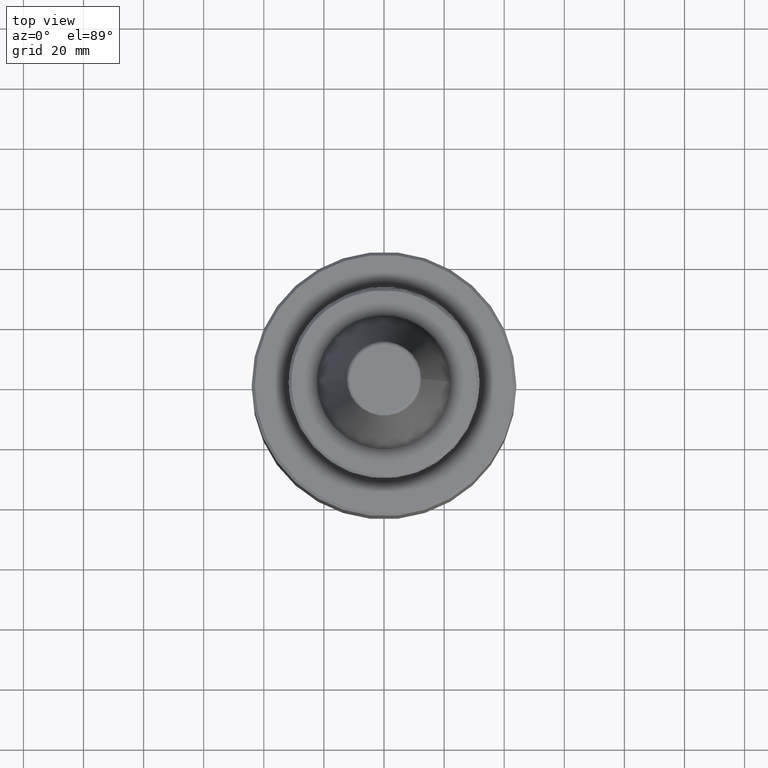
[diagram: clean part render]
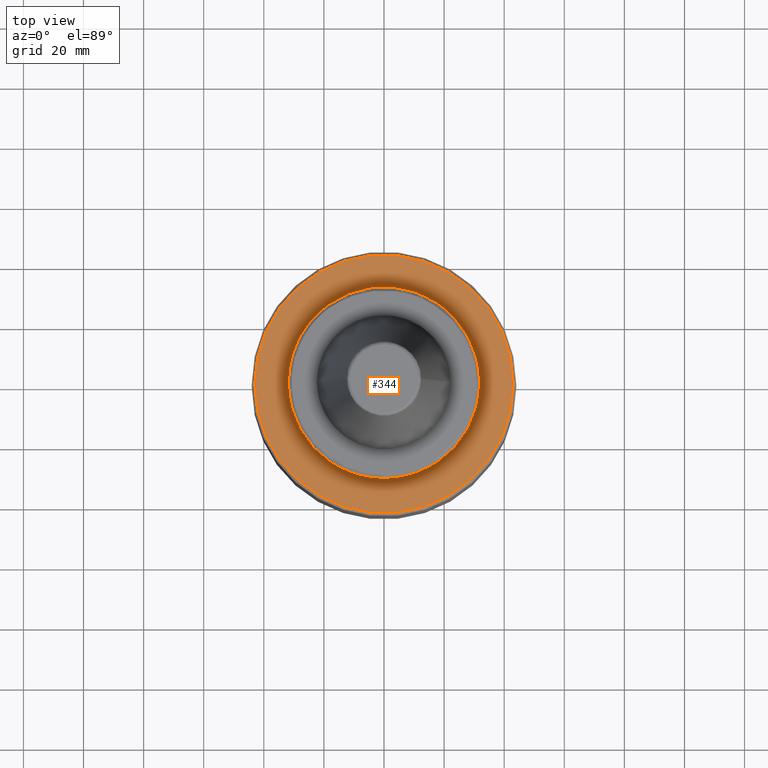
[diagram: same view with one face highlighted and labeled with its STEP entity id]
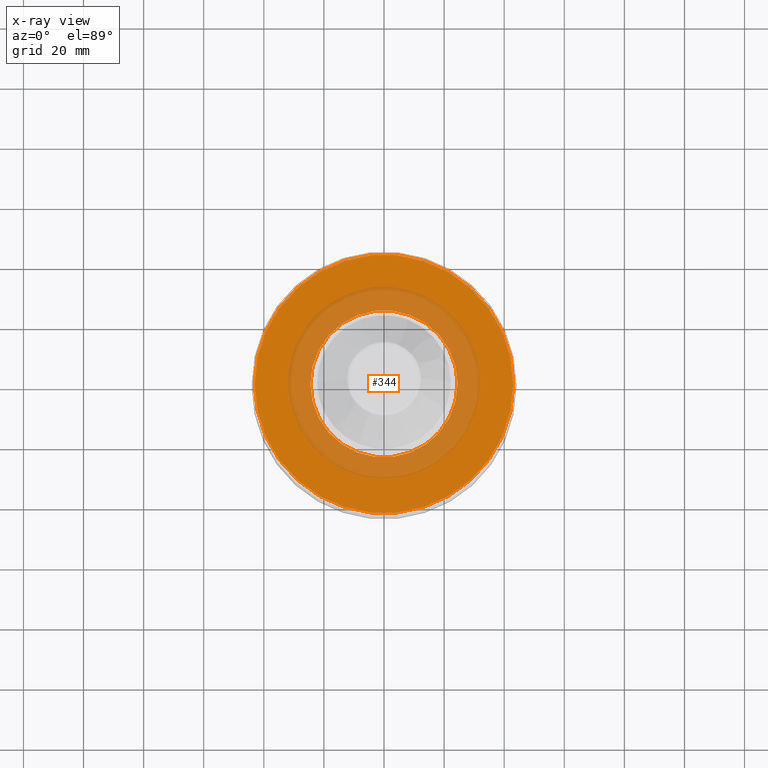
[diagram: x-ray of the same camera — body ghosted, the highlighted face saturated]
A machine part, top view. The second image highlights one B-rep face of the part: STEP entity #344.
The next image is the same camera in x-ray: the body ghosted, the highlighted face saturated — about 33% of this face is hidden behind the body in this view.
In plain terms, the highlighted planar face has unit normal (0, 0, -1).
Its self-contained STEP definition (entity closure, byte-faithful):
#98 = DIRECTION ( 'NONE',  ( 0.0000000000000000000, 0.0000000000000000000, -1.000000000000000000 ) ) ;
#124 = ORIENTED_EDGE ( 'NONE', *, *, #2422, .F. ) ;
#344 = ADVANCED_FACE ( 'NONE', ( #1695, #1582 ), #1349, .F. ) ;
#459 = CARTESIAN_POINT ( 'NONE',  ( 0.0000000000000000000, 24.50000000000000000, -36.00000000000001400 ) ) ;
#529 = CARTESIAN_POINT ( 'NONE',  ( 0.0000000000000000000, 0.0000000000000000000, -36.00000000000001400 ) ) ;
#603 = VERTEX_POINT ( 'NONE', #3187 ) ;
#695 = CIRCLE ( 'NONE', #1377, 24.50000000000000000 ) ;
#777 = DIRECTION ( 'NONE',  ( 0.0000000000000000000, 0.0000000000000000000, 1.000000000000000000 ) ) ;
#804 = CIRCLE ( 'NONE', #3019, 24.50000000000000000 ) ;
#814 = CIRCLE ( 'NONE', #1839, 43.00000000000000000 ) ;
#853 = CARTESIAN_POINT ( 'NONE',  ( 0.0000000000000000000, 0.0000000000000000000, -36.00000000000000700 ) ) ;
#884 = DIRECTION ( 'NONE',  ( -1.000000000000000000, 0.0000000000000000000, 0.0000000000000000000 ) ) ;
#998 = VERTEX_POINT ( 'NONE', #3301 ) ;
#1009 = AXIS2_PLACEMENT_3D ( 'NONE', #459, #2465, #1162 ) ;
#1145 = VERTEX_POINT ( 'NONE', #2432 ) ;
#1162 = DIRECTION ( 'NONE',  ( -1.000000000000000000, 0.0000000000000000000, -0.0000000000000000000 ) ) ;
#1188 = DIRECTION ( 'NONE',  ( 1.000000000000000000, 0.0000000000000000000, 0.0000000000000000000 ) ) ;
#1349 = PLANE ( 'NONE',  #1009 ) ;
#1377 = AXIS2_PLACEMENT_3D ( 'NONE', #853, #3178, #1188 ) ;
#1582 = FACE_BOUND ( 'NONE', #4215, .T. ) ;
#1695 = FACE_OUTER_BOUND ( 'NONE', #3982, .T. ) ;
#1839 = AXIS2_PLACEMENT_3D ( 'NONE', #529, #2897, #884 ) ;
#2306 = ORIENTED_EDGE ( 'NONE', *, *, #3751, .F. ) ;
#2414 = ORIENTED_EDGE ( 'NONE', *, *, #3613, .F. ) ;
#2422 = EDGE_CURVE ( 'NONE', #3468, #1145, #3055, .T. ) ;
#2432 = CARTESIAN_POINT ( 'NONE',  ( 43.00000000000000000, 5.327213576290986800E-015, -36.00000000000001400 ) ) ;
#2458 = AXIS2_PLACEMENT_3D ( 'NONE', #3760, #98, #4082 ) ;
#2465 = DIRECTION ( 'NONE',  ( 0.0000000000000000000, 0.0000000000000000000, -1.000000000000000000 ) ) ;
#2796 = CARTESIAN_POINT ( 'NONE',  ( 0.0000000000000000000, 0.0000000000000000000, -36.00000000000000700 ) ) ;
#2897 = DIRECTION ( 'NONE',  ( 0.0000000000000000000, 0.0000000000000000000, -1.000000000000000000 ) ) ;
#3019 = AXIS2_PLACEMENT_3D ( 'NONE', #2796, #777, #3107 ) ;
#3047 = CARTESIAN_POINT ( 'NONE',  ( -43.00000000000000000, 0.0000000000000000000, -36.00000000000001400 ) ) ;
#3055 = CIRCLE ( 'NONE', #2458, 43.00000000000000000 ) ;
#3107 = DIRECTION ( 'NONE',  ( 1.000000000000000000, 0.0000000000000000000, 0.0000000000000000000 ) ) ;
#3178 = DIRECTION ( 'NONE',  ( 0.0000000000000000000, 0.0000000000000000000, 1.000000000000000000 ) ) ;
#3187 = CARTESIAN_POINT ( 'NONE',  ( 24.50000000000000000, 0.0000000000000000000, -36.00000000000000700 ) ) ;
#3247 = ORIENTED_EDGE ( 'NONE', *, *, #3822, .F. ) ;
#3301 = CARTESIAN_POINT ( 'NONE',  ( -24.50000000000000000, 3.000384657911015500E-015, -36.00000000000000700 ) ) ;
#3468 = VERTEX_POINT ( 'NONE', #3047 ) ;
#3613 = EDGE_CURVE ( 'NONE', #603, #998, #804, .T. ) ;
#3751 = EDGE_CURVE ( 'NONE', #998, #603, #695, .T. ) ;
#3760 = CARTESIAN_POINT ( 'NONE',  ( 0.0000000000000000000, 0.0000000000000000000, -36.00000000000001400 ) ) ;
#3822 = EDGE_CURVE ( 'NONE', #1145, #3468, #814, .T. ) ;
#3982 = EDGE_LOOP ( 'NONE', ( #124, #3247 ) ) ;
#4082 = DIRECTION ( 'NONE',  ( -1.000000000000000000, 0.0000000000000000000, 0.0000000000000000000 ) ) ;
#4215 = EDGE_LOOP ( 'NONE', ( #2414, #2306 ) ) ;